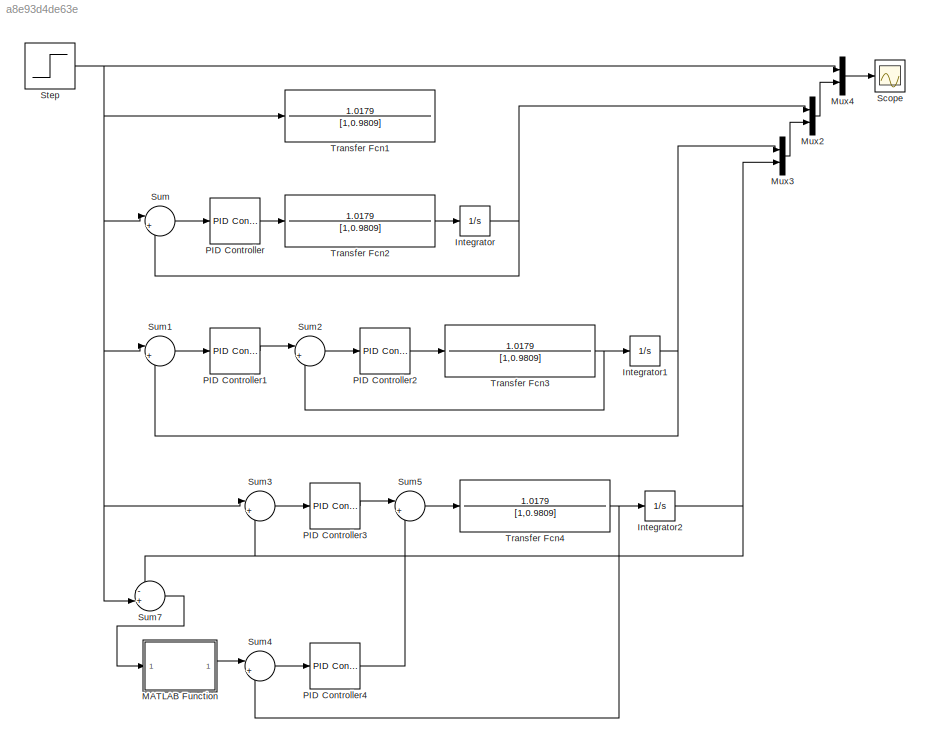
MODEL slx_a8e93d4de63e
KIND model
CONFIG AbsTol = auto
CONFIG EnableMultiTasking = off
CONFIG FixedStep = auto
CONFIG MaxStep = auto
CONFIG MinStep = auto
CONFIG RelTol = 1e-3
CONFIG SampleTimeConstraint = Unconstrained
CONFIG SolverName = VariableStepAuto
CONFIG StartTime = 0.0
CONFIG StopTime = 30
BLOCK [Integrator] Integrator
BLOCK [Integrator] Integrator1
BLOCK [Integrator] Integrator2
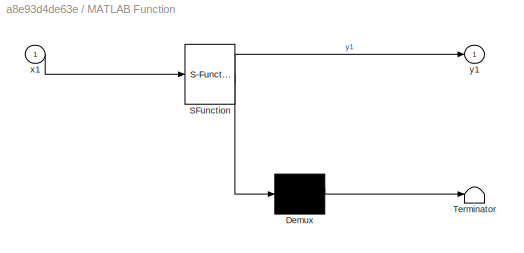
BLOCK [SubSystem] MATLAB Function
  ErrorFcn = Stateflow.Translate.translate
  PermitHierarchicalResolution = ExplicitOnly
  SFBlockType = MATLAB Function
  TreatAsAtomicUnit = on
BLOCK [Demux] MATLAB Function/ Demux 
  Outputs = 1
BLOCK [S-Function] MATLAB Function/ SFunction 
  EnableBusSupport = on
  FunctionName = sf_sfun
  PortCounts = [1 2]
  SFcnIsStateOwnerBlock = off
  SFunctionDeploymentMode = off
  Tag = Stateflow S-Function 3
BLOCK [Terminator] MATLAB Function/ Terminator 
BLOCK [Inport] MATLAB Function/x1
BLOCK [Outport] MATLAB Function/y1
  VectorParamsAs1DForOutWhenUnconnected = off
BLOCK [Mux] Mux2
  DisplayOption = bar
  Inputs = 2
BLOCK [Mux] Mux3
  DisplayOption = bar
  Inputs = 2
BLOCK [Mux] Mux4
  DisplayOption = bar
  Inputs = 2
BLOCK [Reference] PID Controller  REF=slpidlib/PID Controller
  LibrarySourceBlock = simulink/Continuous/PID Controller
  SourceBlock = slpidlib/PID Controller
  SourceType = PID 1dof
BLOCK [Reference] PID Controller1  REF=slpidlib/PID Controller
  LibrarySourceBlock = simulink/Continuous/PID Controller
  SourceBlock = slpidlib/PID Controller
  SourceType = PID 1dof
BLOCK [Reference] PID Controller2  REF=slpidlib/PID Controller
  LibrarySourceBlock = simulink/Continuous/PID Controller
  SourceBlock = slpidlib/PID Controller
  SourceType = PID 1dof
BLOCK [Reference] PID Controller3  REF=slpidlib/PID Controller
  LibrarySourceBlock = simulink/Continuous/PID Controller
  SourceBlock = slpidlib/PID Controller
  SourceType = PID 1dof
BLOCK [Reference] PID Controller4  REF=slpidlib/PID Controller
  LibrarySourceBlock = simulink/Continuous/PID Controller
  SourceBlock = slpidlib/PID Controller
  SourceType = PID 1dof
BLOCK [Scope] Scope
  Floating = off
  NumInputPorts = 1
  ScopeSpecificationString = Simulink.scopes.TimeScopeBlockCfg('CurrentConfiguration', extmgr.ConfigurationSet(extmgr.Configuration('Core','General UI',true),extmgr.Configuration('Core','Source UI',true),extmgr.Configuration('Sources','WiredSimulink',true),extmgr.Configuration('Visuals','Time Domain',true,'SerializedDisplays',{struct('MinYLimReal','-0.25042','MaxYLimReal','2.25375','YLabelReal','','MinYLimMag','0.00000','MaxY...<+1397ch>
BLOCK [Step] Step
  After = 2
  SampleTime = 0
BLOCK [Sum] Sum
  Inputs = |+-
BLOCK [Sum] Sum1
  Inputs = |+-
BLOCK [Sum] Sum2
  Inputs = |+-
BLOCK [Sum] Sum3
  Inputs = |+-
BLOCK [Sum] Sum4
  Inputs = |+-
BLOCK [Sum] Sum5
  Inputs = |++
BLOCK [Sum] Sum7
  Inputs = -+|
BLOCK [TransferFcn] Transfer Fcn1
  Denominator = [1,0.9809]
  Numerator = 1.0179
BLOCK [TransferFcn] Transfer Fcn2
  Denominator = [1,0.9809]
  Numerator = 1.0179
BLOCK [TransferFcn] Transfer Fcn3
  Denominator = [1,0.9809]
  Numerator = 1.0179
BLOCK [TransferFcn] Transfer Fcn4
  Denominator = [1,0.9809]
  Numerator = 1.0179
NET Integrator1:1 -> Mux3:1, Sum1:2
NET Integrator2:1 -> Mux3:2, Sum3:2, Sum7:1
NET Integrator:1 -> Mux2:1, Sum:2
LINE MATLAB Function:1 -> Sum4:1
LINE Mux2:1 -> Mux4:2
LINE Mux3:1 -> Mux2:2
LINE Mux4:1 -> Scope:1
LINE PID Controller1:1 -> Sum2:1
LINE PID Controller2:1 -> Transfer Fcn3:1
LINE PID Controller3:1 -> Sum5:1
LINE PID Controller4:1 -> Sum5:2
LINE PID Controller:1 -> Transfer Fcn2:1
NET Step:1 -> Mux4:1, Sum1:1, Sum3:1, Sum7:2, Sum:1, Transfer Fcn1:1
LINE Sum1:1 -> PID Controller1:1
LINE Sum2:1 -> PID Controller2:1
LINE Sum3:1 -> PID Controller3:1
LINE Sum4:1 -> PID Controller4:1
LINE Sum5:1 -> Transfer Fcn4:1
LINE Sum7:1 -> MATLAB Function:1
LINE Sum:1 -> PID Controller:1
LINE Transfer Fcn2:1 -> Integrator:1
NET Transfer Fcn3:1 -> Integrator1:1, Sum2:2
NET Transfer Fcn4:1 -> Integrator2:1, Sum4:2
note: NET lines group one-source signal fan-out (src -> all destinations, sorted); 1:1 wires keep LINE
CHART MATLAB Function states=1 transitions=1
  STATE_LABEL 'eML_blk_kernel()'
  STATE_LABEL 'SCRIPT:\nfunction y1 = fcn(x1)\n%#codegen\n\nteste = (x1 < 0) * -1 + (x1 >= 0)\nvalor = x1 * teste\n\nMIN = 0.3\nvalorRetorno = 0.4\n\nv1 = (valor >= MIN) * valorRetorno\nv2 = (valor < MIN) * ((valorRetorno / (MIN)) * valor)\n\ny1 = (v1 + v2) * teste\n\n'
CHART  states=0 transitions=0
